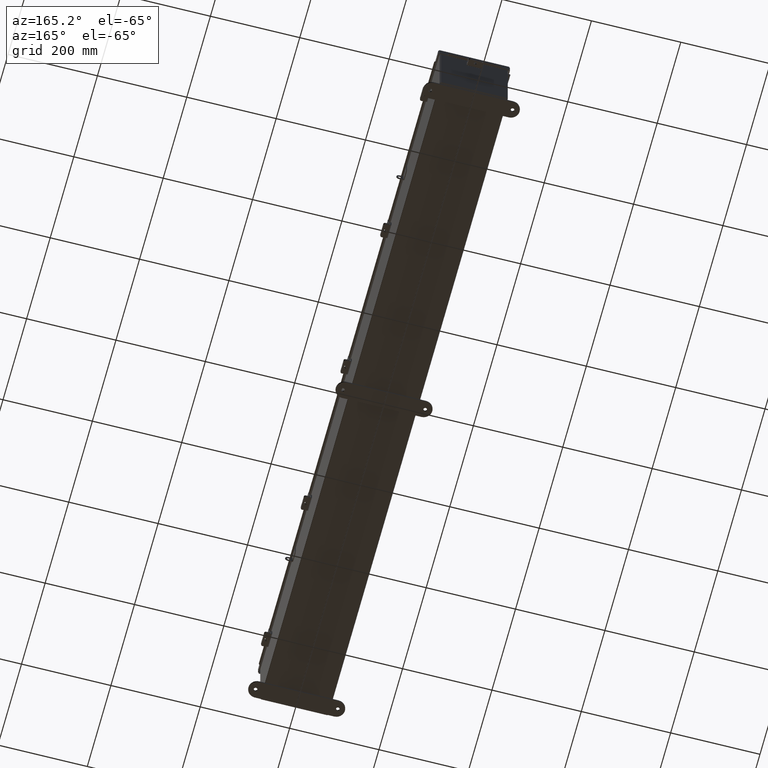
[diagram: clean part render]
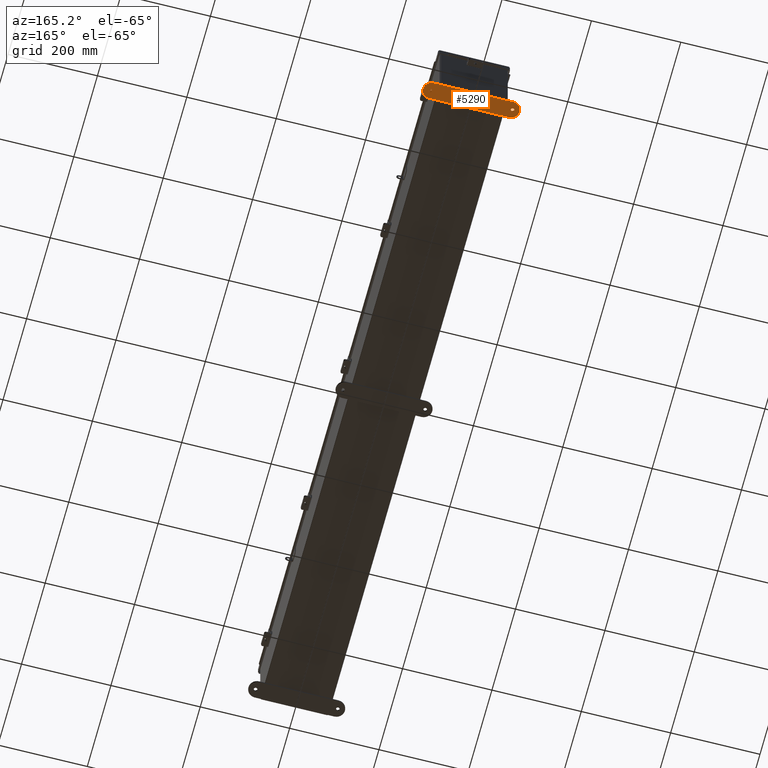
[diagram: same view with one face highlighted and labeled with its STEP entity id]
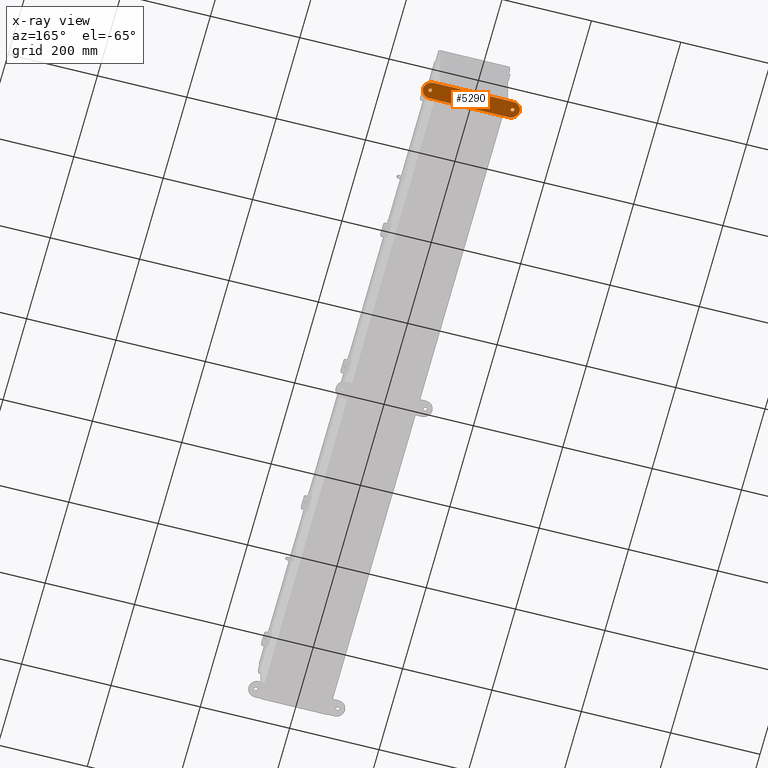
[diagram: x-ray of the same camera — body ghosted, the highlighted face saturated]
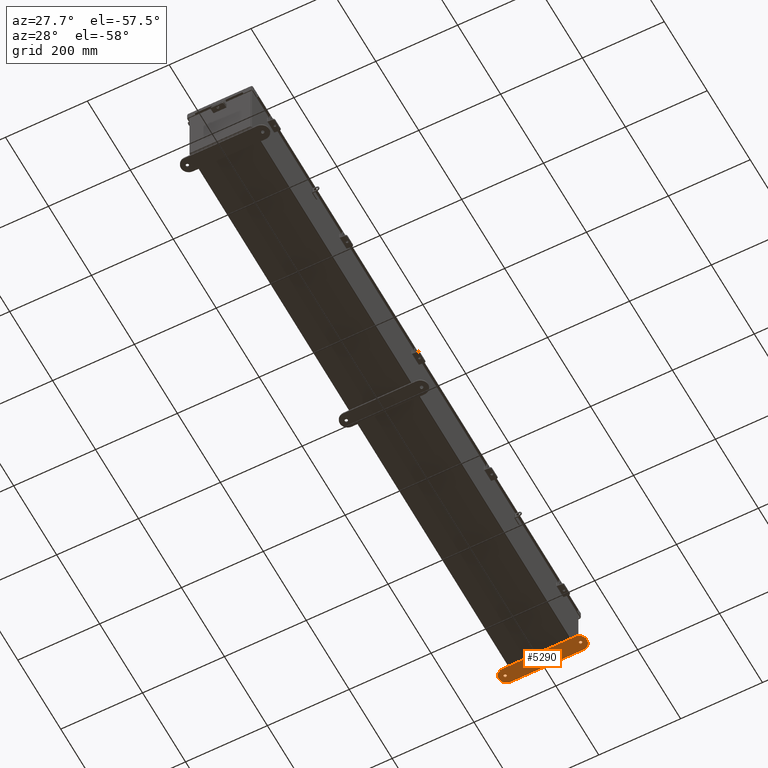
[diagram: same view with one face highlighted and labeled with its STEP entity id]
A machine part, auxiliary view. The second image highlights one B-rep face of the part: STEP entity #5290.
The next image is the same camera in x-ray: the body ghosted, the highlighted face saturated — about 0% of this face is hidden behind the body in this view.
A second angle (auxiliary view) of the same face is appended — the face is thin or edge-on in the first view.
In plain terms, the highlighted planar face has unit normal (0, 0, 1).
Its self-contained STEP definition (entity closure, byte-faithful):
#49 = FACE_BOUND ( 'NONE', #31359, .T. ) ;
#83 = CARTESIAN_POINT ( 'NONE',  ( 3.500000000000000000, 0.4120940649496110900, 0.0000000000000000000 ) ) ;
#372 = CARTESIAN_POINT ( 'NONE',  ( 3.781499999999999400, 0.4120940649496067100, 0.0000000000000000000 ) ) ;
#469 = CARTESIAN_POINT ( 'NONE',  ( 3.625000000000000400, 0.4120940649496067100, 0.0000000000000000000 ) ) ;
#582 = CIRCLE ( 'NONE', #35093, 0.1564999999999992800 ) ;
#1808 = ORIENTED_EDGE ( 'NONE', *, *, #27655, .T. ) ;
#2719 = VERTEX_POINT ( 'NONE', #14748 ) ;
#2981 = EDGE_CURVE ( 'NONE', #35963, #9561, #13819, .T. ) ;
#3821 = DIRECTION ( 'NONE',  ( -1.000000000000000000, 0.0000000000000000000, 0.0000000000000000000 ) ) ;
#5001 = EDGE_CURVE ( 'NONE', #25384, #9190, #582, .T. ) ;
#5290 = ADVANCED_FACE ( 'NONE', ( #41371, #32511, #49 ), #5927, .F. ) ;
#5927 = PLANE ( 'NONE',  #13187 ) ;
#6405 = CIRCLE ( 'NONE', #39908, 0.1564999999999992800 ) ;
#6466 = ORIENTED_EDGE ( 'NONE', *, *, #8958, .F. ) ;
#6863 = VERTEX_POINT ( 'NONE', #15611 ) ;
#7049 = DIRECTION ( 'NONE',  ( 0.0000000000000000000, 0.0000000000000000000, 1.000000000000000000 ) ) ;
#7244 = VERTEX_POINT ( 'NONE', #14245 ) ;
#8594 = CIRCLE ( 'NONE', #29323, 0.1564999999999992800 ) ;
#8958 = EDGE_CURVE ( 'NONE', #28941, #6863, #8594, .T. ) ;
#9190 = VERTEX_POINT ( 'NONE', #37588 ) ;
#9287 = CARTESIAN_POINT ( 'NONE',  ( 3.500000000000000000, 0.4120940649496110900, 0.0000000000000000000 ) ) ;
#9561 = VERTEX_POINT ( 'NONE', #42763 ) ;
#9778 = DIRECTION ( 'NONE',  ( 0.0000000000000000000, 0.0000000000000000000, 1.000000000000000000 ) ) ;
#9998 = DIRECTION ( 'NONE',  ( -1.000000000000000000, 0.0000000000000000000, 0.0000000000000000000 ) ) ;
#10229 = LINE ( 'NONE', #38064, #35899 ) ;
#11216 = CARTESIAN_POINT ( 'NONE',  ( -3.625000000000000400, 0.4120940649496067100, 0.0000000000000000000 ) ) ;
#12216 = ORIENTED_EDGE ( 'NONE', *, *, #12974, .T. ) ;
#12538 = CARTESIAN_POINT ( 'NONE',  ( 3.625000000000000400, 0.4120940649496067100, 0.0000000000000000000 ) ) ;
#12646 = DIRECTION ( 'NONE',  ( 0.0000000000000000000, 0.0000000000000000000, -1.000000000000000000 ) ) ;
#12952 = VERTEX_POINT ( 'NONE', #41782 ) ;
#12974 = EDGE_CURVE ( 'NONE', #2719, #12952, #19691, .T. ) ;
#13187 = AXIS2_PLACEMENT_3D ( 'NONE', #9287, #12646, #36097 ) ;
#13819 = CIRCLE ( 'NONE', #27702, 0.7500000000000010000 ) ;
#14245 = CARTESIAN_POINT ( 'NONE',  ( 3.499999999999998700, -0.3379059350503894100, 0.0000000000000000000 ) ) ;
#14575 = DIRECTION ( 'NONE',  ( 1.000000000000000000, 0.0000000000000000000, 0.0000000000000000000 ) ) ;
#14748 = CARTESIAN_POINT ( 'NONE',  ( -3.499999999999998700, 1.162094064949611600, 0.0000000000000000000 ) ) ;
#15019 = VECTOR ( 'NONE', #15887, 39.37007874015748100 ) ;
#15144 = AXIS2_PLACEMENT_3D ( 'NONE', #469, #23877, #3821 ) ;
#15611 = CARTESIAN_POINT ( 'NONE',  ( -3.781499999999999400, 0.4120940649496067100, 0.0000000000000000000 ) ) ;
#15887 = DIRECTION ( 'NONE',  ( -1.000000000000000000, -1.170791997284684700E-016, 0.0000000000000000000 ) ) ;
#16962 = CIRCLE ( 'NONE', #32638, 0.7500000000000010000 ) ;
#18552 = DIRECTION ( 'NONE',  ( 0.0000000000000000000, 0.0000000000000000000, 1.000000000000000000 ) ) ;
#18804 = CARTESIAN_POINT ( 'NONE',  ( 3.500000000000000000, 0.4120940649496110900, 0.0000000000000000000 ) ) ;
#19470 = EDGE_LOOP ( 'NONE', ( #6466, #24203 ) ) ;
#19691 = CIRCLE ( 'NONE', #20284, 0.7499999999999998900 ) ;
#19748 = ORIENTED_EDGE ( 'NONE', *, *, #5001, .T. ) ;
#20284 = AXIS2_PLACEMENT_3D ( 'NONE', #38616, #18552, #41919 ) ;
#21387 = EDGE_CURVE ( 'NONE', #6863, #28941, #6405, .T. ) ;
#22152 = DIRECTION ( 'NONE',  ( -1.000000000000000000, 0.0000000000000000000, 0.0000000000000000000 ) ) ;
#22709 = CARTESIAN_POINT ( 'NONE',  ( 4.250000000000000900, 0.4120940649496110900, 0.0000000000000000000 ) ) ;
#23877 = DIRECTION ( 'NONE',  ( 0.0000000000000000000, 0.0000000000000000000, -1.000000000000000000 ) ) ;
#24167 = ORIENTED_EDGE ( 'NONE', *, *, #2981, .T. ) ;
#24203 = ORIENTED_EDGE ( 'NONE', *, *, #21387, .F. ) ;
#25237 = EDGE_CURVE ( 'NONE', #9561, #2719, #39632, .T. ) ;
#25384 = VERTEX_POINT ( 'NONE', #372 ) ;
#25727 = CARTESIAN_POINT ( 'NONE',  ( -3.468500000000001000, 0.4120940649496067100, 0.0000000000000000000 ) ) ;
#27655 = EDGE_CURVE ( 'NONE', #7244, #35963, #16962, .T. ) ;
#27702 = AXIS2_PLACEMENT_3D ( 'NONE', #83, #7049, #28700 ) ;
#28700 = DIRECTION ( 'NONE',  ( -1.000000000000000000, 0.0000000000000000000, 0.0000000000000000000 ) ) ;
#28941 = VERTEX_POINT ( 'NONE', #25727 ) ;
#29101 = ORIENTED_EDGE ( 'NONE', *, *, #35294, .T. ) ;
#29323 = AXIS2_PLACEMENT_3D ( 'NONE', #29874, #9778, #33221 ) ;
#29874 = CARTESIAN_POINT ( 'NONE',  ( -3.625000000000000400, 0.4120940649496067100, 0.0000000000000000000 ) ) ;
#31359 = EDGE_LOOP ( 'NONE', ( #19748, #32282 ) ) ;
#32282 = ORIENTED_EDGE ( 'NONE', *, *, #35148, .T. ) ;
#32511 = FACE_BOUND ( 'NONE', #19470, .T. ) ;
#32638 = AXIS2_PLACEMENT_3D ( 'NONE', #18804, #42170, #22152 ) ;
#33221 = DIRECTION ( 'NONE',  ( 1.000000000000000000, 0.0000000000000000000, 0.0000000000000000000 ) ) ;
#34347 = DIRECTION ( 'NONE',  ( 0.0000000000000000000, 0.0000000000000000000, -1.000000000000000000 ) ) ;
#34672 = DIRECTION ( 'NONE',  ( 0.0000000000000000000, 0.0000000000000000000, 1.000000000000000000 ) ) ;
#35091 = EDGE_LOOP ( 'NONE', ( #1808, #24167, #35870, #12216, #29101 ) ) ;
#35093 = AXIS2_PLACEMENT_3D ( 'NONE', #12538, #34347, #9998 ) ;
#35148 = EDGE_CURVE ( 'NONE', #9190, #25384, #42145, .T. ) ;
#35294 = EDGE_CURVE ( 'NONE', #12952, #7244, #10229, .T. ) ;
#35870 = ORIENTED_EDGE ( 'NONE', *, *, #25237, .T. ) ;
#35899 = VECTOR ( 'NONE', #41395, 39.37007874015748100 ) ;
#35963 = VERTEX_POINT ( 'NONE', #22709 ) ;
#36097 = DIRECTION ( 'NONE',  ( -1.000000000000000000, 0.0000000000000000000, 0.0000000000000000000 ) ) ;
#37588 = CARTESIAN_POINT ( 'NONE',  ( 3.468500000000001000, 0.4120940649496067100, 0.0000000000000000000 ) ) ;
#38064 = CARTESIAN_POINT ( 'NONE',  ( -3.499999999999998700, -0.3379059350503894100, 0.0000000000000000000 ) ) ;
#38616 = CARTESIAN_POINT ( 'NONE',  ( -3.499999999999998700, 0.4120940649496110900, 0.0000000000000000000 ) ) ;
#39632 = LINE ( 'NONE', #39737, #15019 ) ;
#39737 = CARTESIAN_POINT ( 'NONE',  ( -3.499999999999998700, 1.162094064949611600, 0.0000000000000000000 ) ) ;
#39908 = AXIS2_PLACEMENT_3D ( 'NONE', #11216, #34672, #14575 ) ;
#41371 = FACE_OUTER_BOUND ( 'NONE', #35091, .T. ) ;
#41395 = DIRECTION ( 'NONE',  ( 1.000000000000000000, -1.170791997284684700E-016, 0.0000000000000000000 ) ) ;
#41782 = CARTESIAN_POINT ( 'NONE',  ( -3.499999999999998700, -0.3379059350503894100, 0.0000000000000000000 ) ) ;
#41919 = DIRECTION ( 'NONE',  ( 1.000000000000000000, 0.0000000000000000000, 0.0000000000000000000 ) ) ;
#42145 = CIRCLE ( 'NONE', #15144, 0.1564999999999992800 ) ;
#42170 = DIRECTION ( 'NONE',  ( 0.0000000000000000000, 0.0000000000000000000, 1.000000000000000000 ) ) ;
#42763 = CARTESIAN_POINT ( 'NONE',  ( 3.499999999999998700, 1.162094064949615900, 0.0000000000000000000 ) ) ;